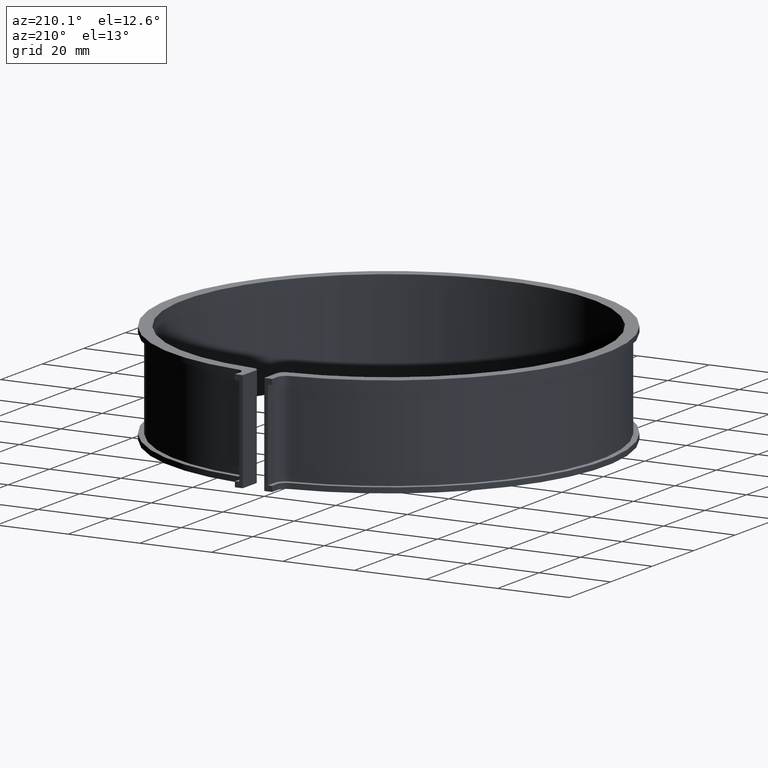
[diagram: clean part render]
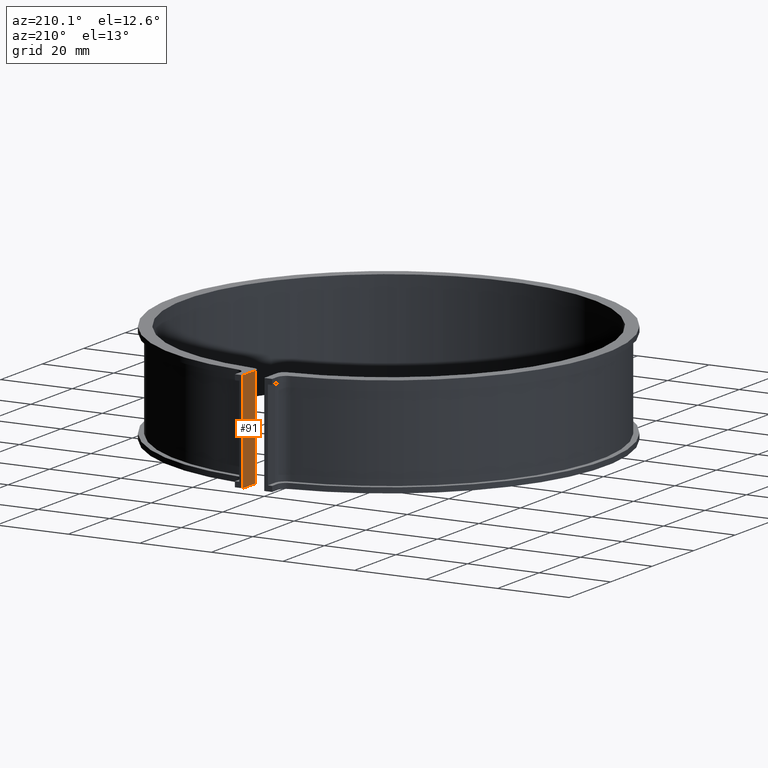
[diagram: same view with one face highlighted and labeled with its STEP entity id]
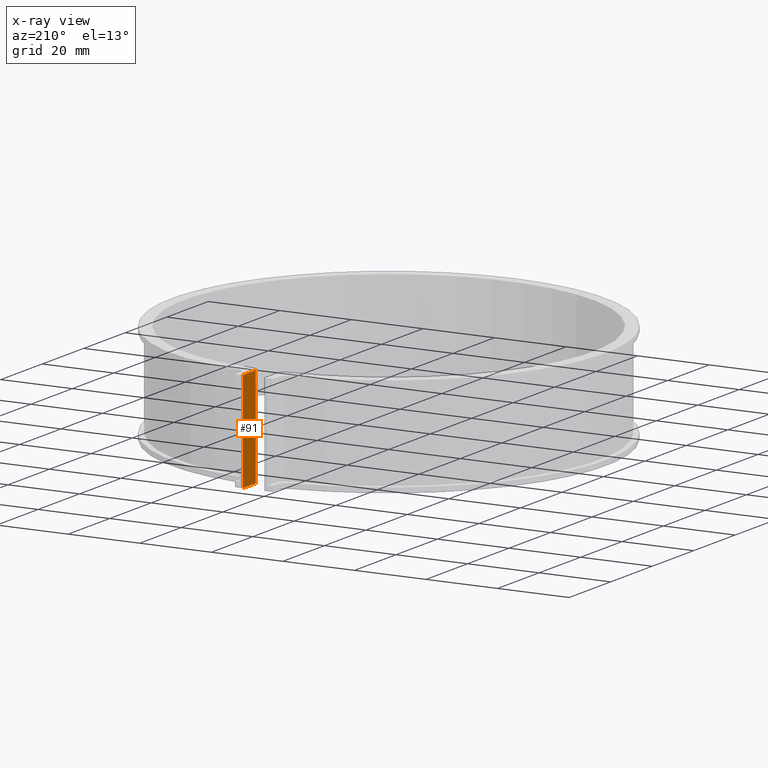
[diagram: x-ray of the same camera — body ghosted, the highlighted face saturated]
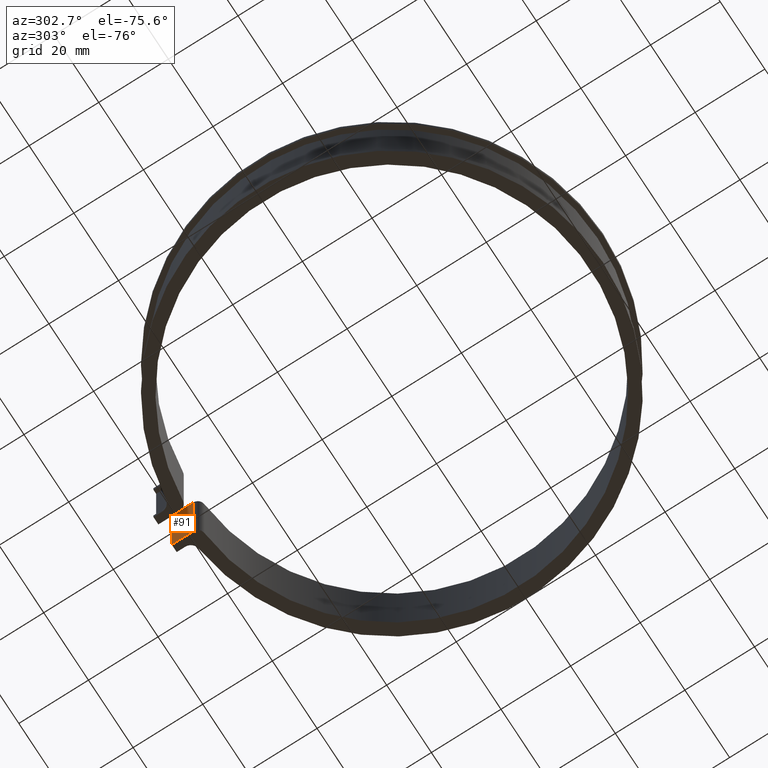
[diagram: same view with one face highlighted and labeled with its STEP entity id]
A machine part, auxiliary view. The second image highlights one B-rep face of the part: STEP entity #91.
The next image is the same camera in x-ray: the body ghosted, the highlighted face saturated — about 0% of this face is hidden behind the body in this view.
A second angle (auxiliary view) of the same face is appended — the face is thin or edge-on in the first view.
In plain terms, the highlighted planar face has unit normal (-1, 0, 0).
Its self-contained STEP definition (entity closure, byte-faithful):
#91 = ADVANCED_FACE( '', ( #134 ), #135, .T. );
#134 = FACE_OUTER_BOUND( '', #186, .T. );
#135 = PLANE( '', #187 );
#186 = EDGE_LOOP( '', ( #350, #351, #352, #353 ) );
#187 = AXIS2_PLACEMENT_3D( '', #354, #355, #356 );
#350 = ORIENTED_EDGE( '', *, *, #463, .F. );
#351 = ORIENTED_EDGE( '', *, *, #443, .F. );
#352 = ORIENTED_EDGE( '', *, *, #476, .T. );
#353 = ORIENTED_EDGE( '', *, *, #433, .T. );
#354 = CARTESIAN_POINT( '', ( 3.00000000000000, 65.1500000000000, -14.0000000000000 ) );
#355 = DIRECTION( '', ( -1.00000000000000, 4.16333634234434E-017, 0.000000000000000 ) );
#356 = DIRECTION( '', ( 4.16333634234434E-017, 1.00000000000000, 0.000000000000000 ) );
#433 = EDGE_CURVE( '', #511, #508, #512, .T. );
#443 = EDGE_CURVE( '', #529, #517, #531, .T. );
#463 = EDGE_CURVE( '', #517, #508, #565, .T. );
#476 = EDGE_CURVE( '', #529, #511, #588, .T. );
#508 = VERTEX_POINT( '', #632 );
#511 = VERTEX_POINT( '', #635 );
#512 = LINE( '', #636, #637 );
#517 = VERTEX_POINT( '', #643 );
#529 = VERTEX_POINT( '', #661 );
#531 = LINE( '', #664, #665 );
#565 = LINE( '', #708, #709 );
#588 = LINE( '', #738, #739 );
#632 = CARTESIAN_POINT( '', ( 3.00000000000000, 58.9382940031352, 14.0000000000000 ) );
#635 = CARTESIAN_POINT( '', ( 3.00000000000000, 58.9382940031352, -14.0000000000000 ) );
#636 = CARTESIAN_POINT( '', ( 3.00000000000000, 58.9382940031352, -14.0000000000000 ) );
#637 = VECTOR( '', #795, 1000.00000000000 );
#643 = CARTESIAN_POINT( '', ( 3.00000000000001, 65.1500000000000, 14.0000000000000 ) );
#661 = CARTESIAN_POINT( '', ( 3.00000000000001, 65.1500000000000, -14.0000000000000 ) );
#664 = CARTESIAN_POINT( '', ( 3.00000000000001, 65.1500000000000, -14.0000000000000 ) );
#665 = VECTOR( '', #807, 1000.00000000000 );
#708 = CARTESIAN_POINT( '', ( 3.00000000000000, 65.1500000000000, 14.0000000000000 ) );
#709 = VECTOR( '', #847, 1000.00000000000 );
#738 = CARTESIAN_POINT( '', ( 3.00000000000000, 65.1500000000000, -14.0000000000000 ) );
#739 = VECTOR( '', #872, 1000.00000000000 );
#795 = DIRECTION( '', ( 0.000000000000000, 0.000000000000000, 1.00000000000000 ) );
#807 = DIRECTION( '', ( 0.000000000000000, 0.000000000000000, 1.00000000000000 ) );
#847 = DIRECTION( '', ( 1.38777878078145E-017, -1.00000000000000, 0.000000000000000 ) );
#872 = DIRECTION( '', ( 1.38777878078145E-017, -1.00000000000000, 0.000000000000000 ) );